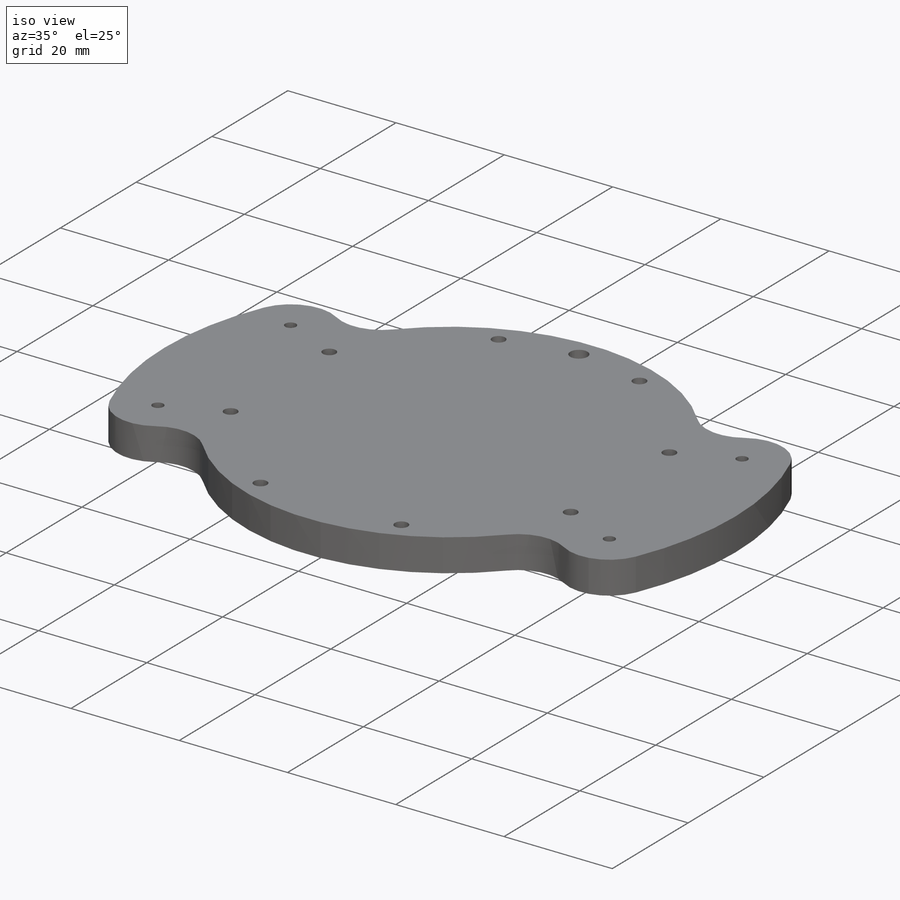
[diagram: iso view]
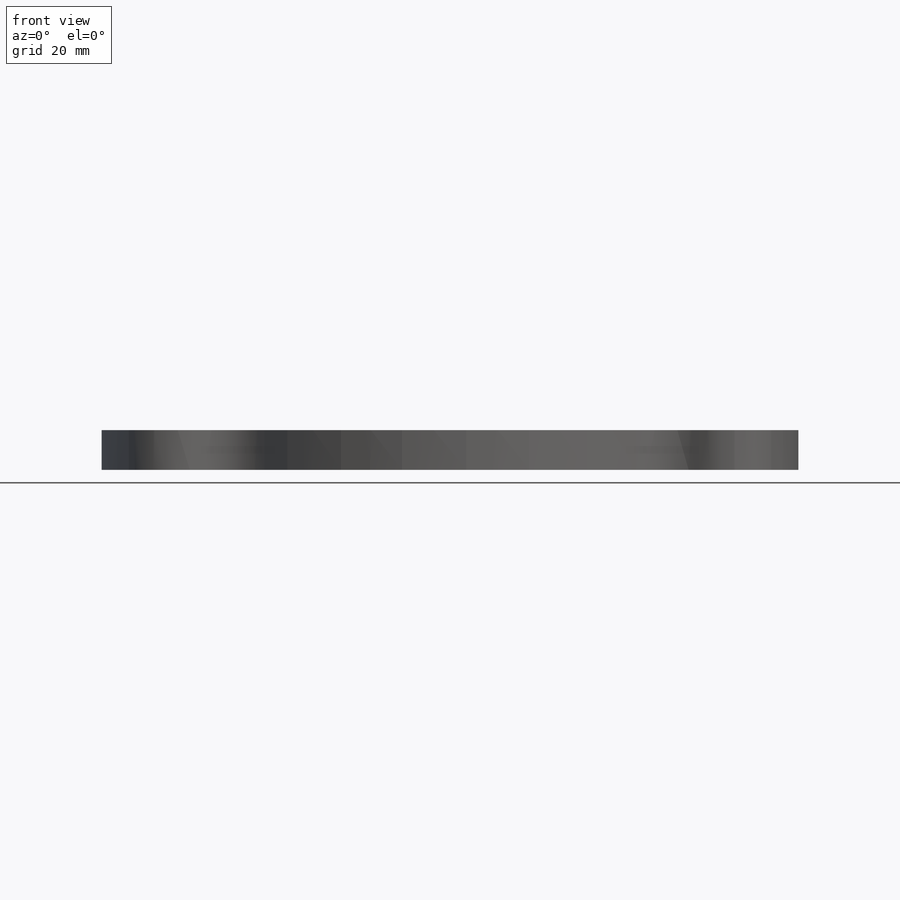
[diagram: front view]
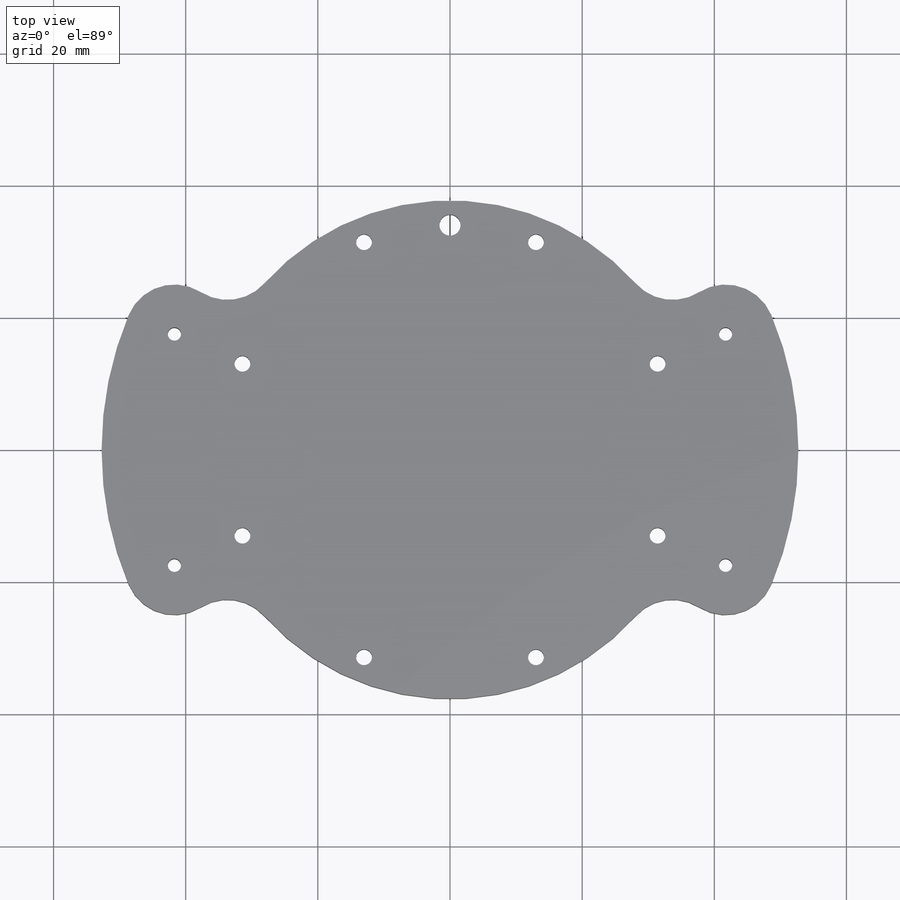
[diagram: top view]
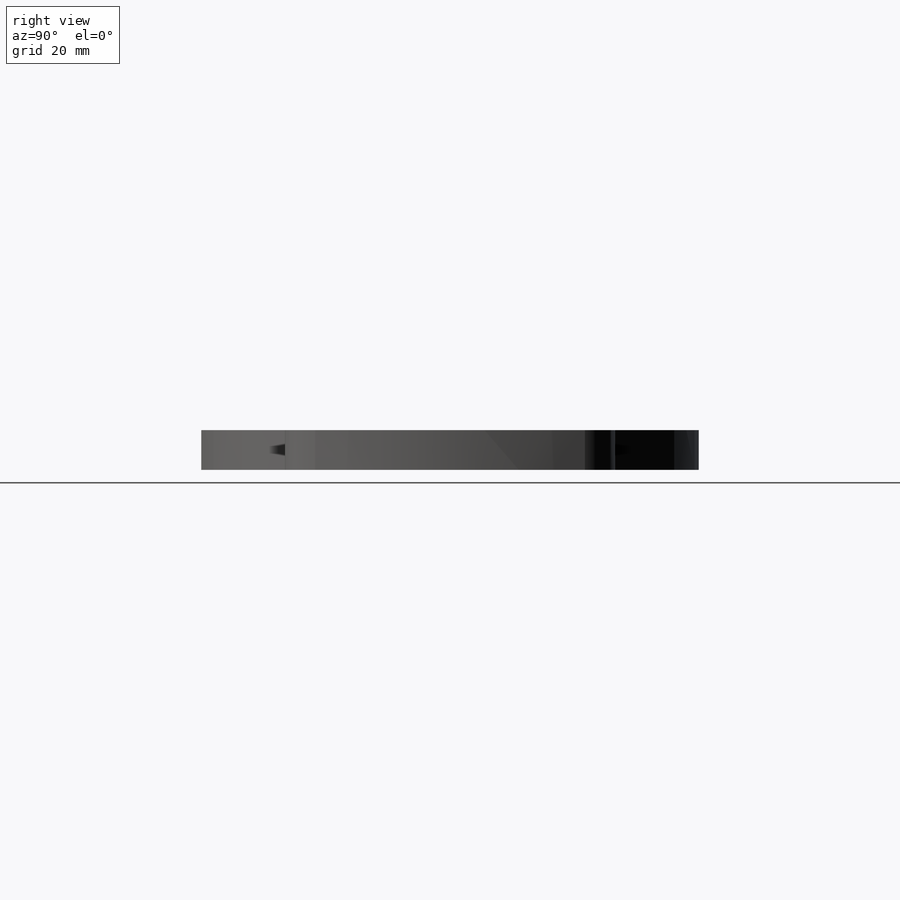
[diagram: right view]
SOLIDWORKS PART (.sldprt)
format: sldprt  version: not decoded by parser v0  size: 263,680 bytes
history: native  units: mm
features: sketch x5, cut_extrude x2, material x1, extrude x1, fillet x1, hole x1 (+13 scaffold rows collapsed)
feature tree (24):
  scaffold x13  (default folders/planes/origin — collapsed)
  material  "Material <not specified>"
  sketch  "Sketch1"  dims[c1.D1=75.45mm c1.D3=2.0mm c1.D6=75.45mm c1.D9=2.0mm c1.D2=34.0mm c1.D4=~30.95461mm c2.D4=22.5deg c2.D6=15.0mm c2.D7=45.225mm c2.D8=35.0mm c2.D10=7.5mm c2.D5=8.0]
  extrude  "Boss-Extrude1"  Depth=6mm
  fillet  "Fillet1"  Radius=7.5mm
  sketch  "Sketch2"  dims[D2=3.2mm D1=34.0mm]
  cut_extrude  "Cut-Extrude1"  [1 undecoded]
  sketch  "Sketch3"  dims[D1=7.2mm]
  cut_extrude  "Cut-Extrude3"  Depth=1.25mm
  hole  "CSK for M2 Flat Head Machine Screw1"  Diameter=2.4mm Depth=6mm
  sketch  "Sketch9"
  sketch  "Sketch8"  dims[hole-wizard template sketch: 55 standard entries collapsed; hole parameters kept: c17.Thru Hole Depth=6.0mm c17.Near C'Sink Dia.=4.4mm c17.D4=~3.666174mm c17.Near C'Sink Angle=90.0deg]
decode coverage: 8 of 10 modeling features carry decoded parameters
note: ~ marks probable driven/reference dimensions
note: 1 parameter value undecoded
note: suppression state not decoded; provenance and decode notes live in map.json
